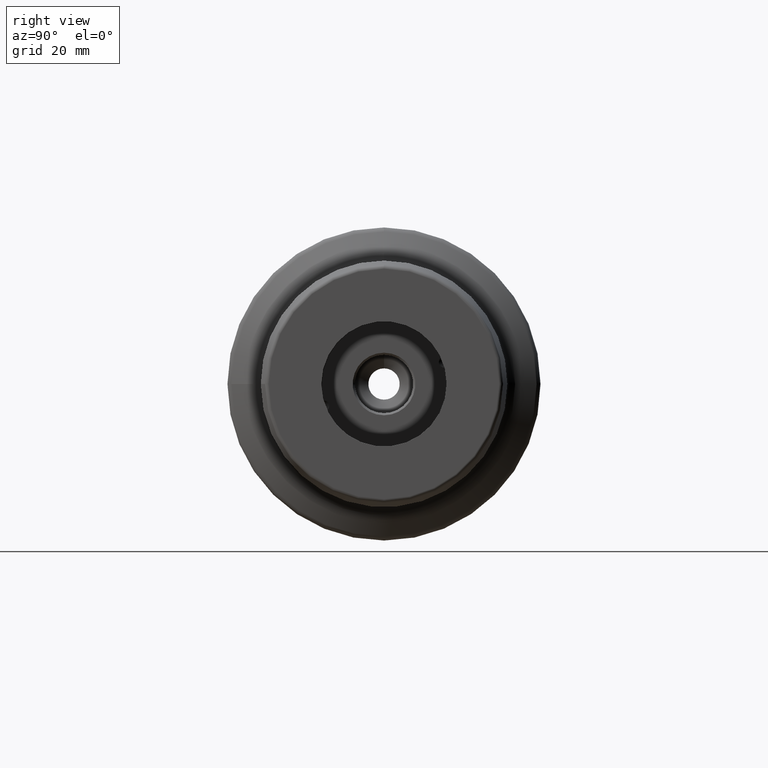
[diagram: clean part render]
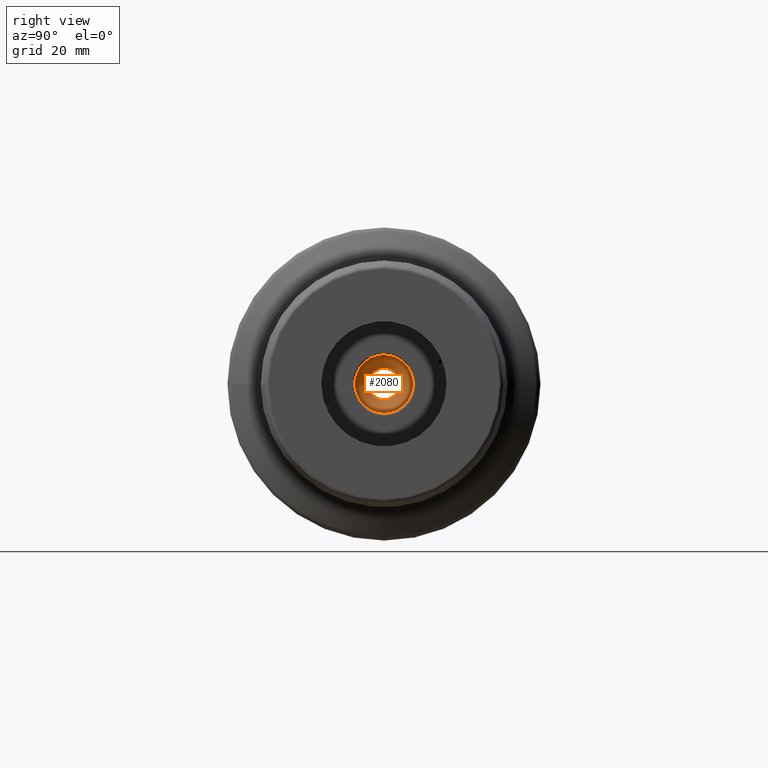
[diagram: same view with one face highlighted and labeled with its STEP entity id]
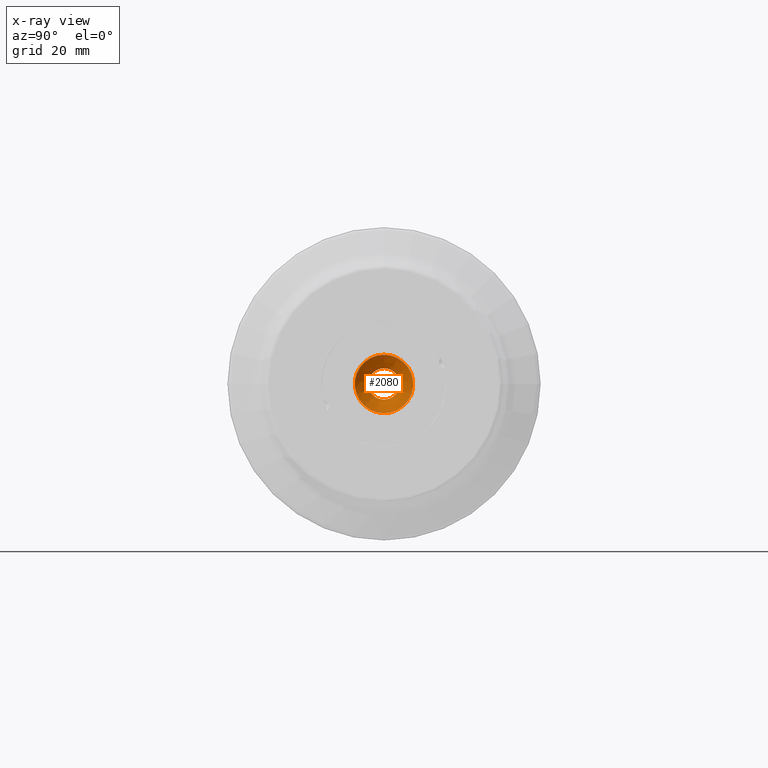
[diagram: x-ray of the same camera — body ghosted, the highlighted face saturated]
A machine part, right view. The second image highlights one B-rep face of the part: STEP entity #2080.
The next image is the same camera in x-ray: the body ghosted, the highlighted face saturated — about 0% of this face is hidden behind the body in this view.
In plain terms, the highlighted conical surface has half-angle 59 deg.
Its self-contained STEP definition (entity closure, byte-faithful):
#141=LINE('',#3815,#230);
#230=VECTOR('',#2879,3.729367);
#367=FACE_OUTER_BOUND('',#477,.T.);
#477=EDGE_LOOP('',(#1716,#1717,#1718,#1719,#1720,#1721));
#665=CIRCLE('',#2343,4.);
#666=CIRCLE('',#2344,4.);
#667=CIRCLE('',#2346,7.458734);
#668=CIRCLE('',#2347,7.458734);
#913=VERTEX_POINT('',#3806);
#914=VERTEX_POINT('',#3808);
#915=VERTEX_POINT('',#3812);
#916=VERTEX_POINT('',#3813);
#1205=EDGE_CURVE('',#914,#913,#665,.T.);
#1206=EDGE_CURVE('',#913,#914,#666,.T.);
#1207=EDGE_CURVE('',#915,#916,#667,.T.);
#1208=EDGE_CURVE('',#916,#914,#141,.T.);
#1209=EDGE_CURVE('',#916,#915,#668,.T.);
#1716=ORIENTED_EDGE('',*,*,#1207,.T.);
#1717=ORIENTED_EDGE('',*,*,#1208,.T.);
#1718=ORIENTED_EDGE('',*,*,#1205,.T.);
#1719=ORIENTED_EDGE('',*,*,#1206,.T.);
#1720=ORIENTED_EDGE('',*,*,#1208,.F.);
#1721=ORIENTED_EDGE('',*,*,#1209,.T.);
#2012=CONICAL_SURFACE('',#2345,3.729367,1.02974425867665);
#2080=ADVANCED_FACE('',(#367),#2012,.F.);
#2343=AXIS2_PLACEMENT_3D('',#3809,#2871,#2872);
#2344=AXIS2_PLACEMENT_3D('',#3810,#2873,#2874);
#2345=AXIS2_PLACEMENT_3D('',#3811,#2875,#2876);
#2346=AXIS2_PLACEMENT_3D('',#3814,#2877,#2878);
#2347=AXIS2_PLACEMENT_3D('',#3816,#2880,#2881);
#2871=DIRECTION('center_axis',(-1.,0.,0.));
#2872=DIRECTION('ref_axis',(0.,0.,1.));
#2873=DIRECTION('center_axis',(-1.,0.,0.));
#2874=DIRECTION('ref_axis',(0.,0.,1.));
#2875=DIRECTION('center_axis',(1.,0.,0.));
#2876=DIRECTION('ref_axis',(0.,0.,-1.));
#2877=DIRECTION('center_axis',(1.,0.,0.));
#2878=DIRECTION('ref_axis',(0.,0.,-1.));
#2879=DIRECTION('',(-0.515038074910054,1.04972719113862E-16,-0.857167300702112));
#2880=DIRECTION('center_axis',(1.,0.,0.));
#2881=DIRECTION('ref_axis',(0.,0.,-1.));
#3806=CARTESIAN_POINT('',(-4.57821705229167,-4.89858719658941E-16,-4.));
#3808=CARTESIAN_POINT('',(-4.57821705229167,-4.89858719658941E-16,4.));
#3809=CARTESIAN_POINT('Origin',(-4.57821705229167,0.,0.));
#3810=CARTESIAN_POINT('Origin',(-4.57821705229167,0.,0.));
#3811=CARTESIAN_POINT('Origin',(-4.74082976420096,0.,0.));
#3812=CARTESIAN_POINT('',(-2.5,0.,-7.458734));
#3813=CARTESIAN_POINT('',(-2.5,-9.13431471879154E-16,7.458734));
#3814=CARTESIAN_POINT('Origin',(-2.5,0.,0.));
#3815=CARTESIAN_POINT('',(-4.74082976420096,-4.56715735939577E-16,3.729367));
#3816=CARTESIAN_POINT('Origin',(-2.5,0.,0.));